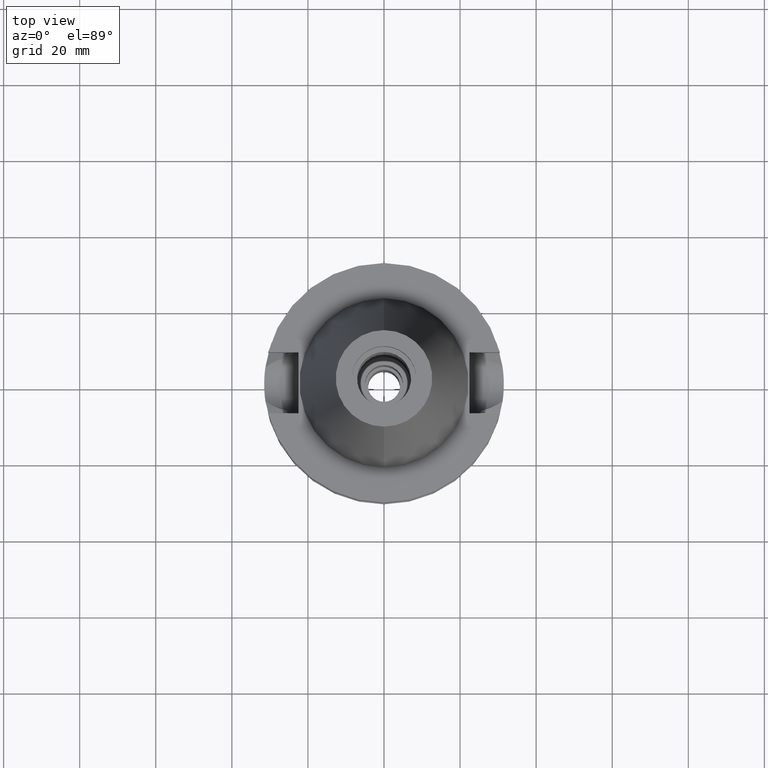
[diagram: clean part render]
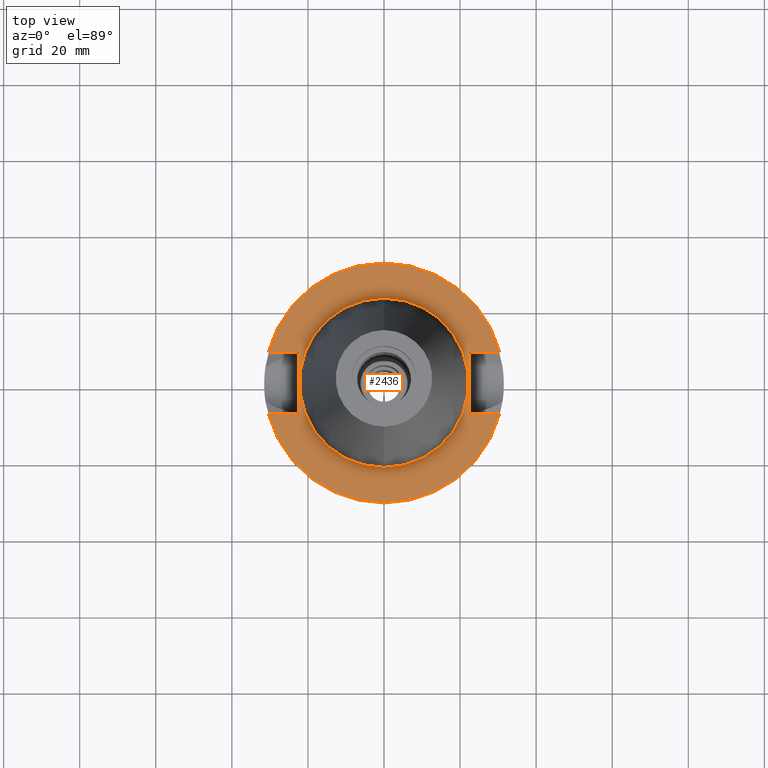
[diagram: same view with one face highlighted and labeled with its STEP entity id]
A machine part, top view. The second image highlights one B-rep face of the part: STEP entity #2436.
In plain terms, the highlighted planar face has unit normal (0, 0, -1).
Its self-contained STEP definition (entity closure, byte-faithful):
#31 = VECTOR ( 'NONE', #2857, 1000.000000000000000 ) ;
#179 = CARTESIAN_POINT ( 'NONE',  ( -30.45402272279000044, -8.050000000000000711, -2.000000000000000000 ) ) ;
#189 = EDGE_LOOP ( 'NONE', ( #730, #2983, #644, #1858, #2926, #400, #1988, #430 ) ) ;
#203 = VECTOR ( 'NONE', #3487, 1000.000000000000000 ) ;
#242 = DIRECTION ( 'NONE',  ( 0.0000000000000000000, -1.000000000000000000, 0.0000000000000000000 ) ) ;
#291 = DIRECTION ( 'NONE',  ( 0.0000000000000000000, 0.0000000000000000000, -1.000000000000000000 ) ) ;
#303 = FACE_OUTER_BOUND ( 'NONE', #189, .T. ) ;
#310 = CARTESIAN_POINT ( 'NONE',  ( 0.0000000000000000000, 2.126231772679999832E-14, -2.000000000000000000 ) ) ;
#316 = CIRCLE ( 'NONE', #1856, 31.50000000000000000 ) ;
#364 = VERTEX_POINT ( 'NONE', #1862 ) ;
#375 = VECTOR ( 'NONE', #2620, 1000.000000000000000 ) ;
#381 = LINE ( 'NONE', #1024, #203 ) ;
#398 = VERTEX_POINT ( 'NONE', #1000 ) ;
#400 = ORIENTED_EDGE ( 'NONE', *, *, #3413, .F. ) ;
#430 = ORIENTED_EDGE ( 'NONE', *, *, #725, .F. ) ;
#438 = VECTOR ( 'NONE', #1786, 1000.000000000000000 ) ;
#461 = EDGE_LOOP ( 'NONE', ( #1060, #3243 ) ) ;
#547 = DIRECTION ( 'NONE',  ( 0.0000000000000000000, 0.0000000000000000000, 1.000000000000000000 ) ) ;
#579 = DIRECTION ( 'NONE',  ( 0.0000000000000000000, 1.000000000000000000, 0.0000000000000000000 ) ) ;
#644 = ORIENTED_EDGE ( 'NONE', *, *, #1874, .F. ) ;
#678 = CARTESIAN_POINT ( 'NONE',  ( 22.50000000000000000, -8.050000000000000711, -2.000000000000000000 ) ) ;
#725 = EDGE_CURVE ( 'NONE', #3561, #398, #3066, .T. ) ;
#730 = ORIENTED_EDGE ( 'NONE', *, *, #2038, .T. ) ;
#799 = VECTOR ( 'NONE', #3373, 1000.000000000000000 ) ;
#807 = EDGE_CURVE ( 'NONE', #2149, #2198, #1813, .T. ) ;
#962 = CARTESIAN_POINT ( 'NONE',  ( -22.50000000000000000, -8.050000000000000711, -2.000000000000000000 ) ) ;
#963 = VERTEX_POINT ( 'NONE', #2690 ) ;
#1000 = CARTESIAN_POINT ( 'NONE',  ( -22.50000000000000000, 8.050000000000000711, -2.000000000000000000 ) ) ;
#1024 = CARTESIAN_POINT ( 'NONE',  ( -22.50000000000000000, 8.050000000000000711, -2.000000000000000000 ) ) ;
#1060 = ORIENTED_EDGE ( 'NONE', *, *, #3155, .F. ) ;
#1088 = CIRCLE ( 'NONE', #1792, 22.22500000000000142 ) ;
#1172 = DIRECTION ( 'NONE',  ( 0.0000000000000000000, 0.0000000000000000000, -1.000000000000000000 ) ) ;
#1331 = CARTESIAN_POINT ( 'NONE',  ( 0.0000000000000000000, 2.126231772679999832E-14, -2.000000000000000000 ) ) ;
#1502 = CARTESIAN_POINT ( 'NONE',  ( 0.0000000000000000000, 2.126231772679999832E-14, -2.000000000000000000 ) ) ;
#1551 = VERTEX_POINT ( 'NONE', #1554 ) ;
#1554 = CARTESIAN_POINT ( 'NONE',  ( 0.0000000000000000000, 22.22500000000000142, -2.000000000000000000 ) ) ;
#1724 = DIRECTION ( 'NONE',  ( 0.0000000000000000000, -1.000000000000000000, 0.0000000000000000000 ) ) ;
#1755 = CARTESIAN_POINT ( 'NONE',  ( 22.50000000000000000, 8.050000000000000711, -2.000000000000000000 ) ) ;
#1786 = DIRECTION ( 'NONE',  ( -1.000000000000000000, 3.550916904668000126E-14, 0.0000000000000000000 ) ) ;
#1792 = AXIS2_PLACEMENT_3D ( 'NONE', #2147, #3261, #1893 ) ;
#1810 = VERTEX_POINT ( 'NONE', #1755 ) ;
#1813 = CIRCLE ( 'NONE', #3045, 31.50000000000000000 ) ;
#1845 = CARTESIAN_POINT ( 'NONE',  ( -22.50000000000000000, -8.050000000000000711, -2.000000000000000000 ) ) ;
#1856 = AXIS2_PLACEMENT_3D ( 'NONE', #310, #291, #2607 ) ;
#1858 = ORIENTED_EDGE ( 'NONE', *, *, #3439, .F. ) ;
#1862 = CARTESIAN_POINT ( 'NONE',  ( 0.0000000000000000000, -22.22500000000000142, -2.000000000000000000 ) ) ;
#1874 = EDGE_CURVE ( 'NONE', #2009, #2149, #1961, .T. ) ;
#1893 = DIRECTION ( 'NONE',  ( 0.0000000000000000000, 1.000000000000000000, 0.0000000000000000000 ) ) ;
#1919 = AXIS2_PLACEMENT_3D ( 'NONE', #1331, #547, #242 ) ;
#1961 = LINE ( 'NONE', #2570, #31 ) ;
#1988 = ORIENTED_EDGE ( 'NONE', *, *, #2063, .F. ) ;
#2009 = VERTEX_POINT ( 'NONE', #678 ) ;
#2038 = EDGE_CURVE ( 'NONE', #3561, #2198, #2637, .T. ) ;
#2063 = EDGE_CURVE ( 'NONE', #398, #963, #381, .T. ) ;
#2100 = CARTESIAN_POINT ( 'NONE',  ( 30.45402272279000044, 8.050000000000000711, -2.000000000000000000 ) ) ;
#2147 = CARTESIAN_POINT ( 'NONE',  ( 0.0000000000000000000, 2.126231772679999832E-14, -2.000000000000000000 ) ) ;
#2149 = VERTEX_POINT ( 'NONE', #3529 ) ;
#2198 = VERTEX_POINT ( 'NONE', #179 ) ;
#2306 = FACE_BOUND ( 'NONE', #461, .T. ) ;
#2350 = EDGE_CURVE ( 'NONE', #1810, #2597, #3410, .T. ) ;
#2436 = ADVANCED_FACE ( 'NONE', ( #303, #2306 ), #3394, .F. ) ;
#2495 = AXIS2_PLACEMENT_3D ( 'NONE', #3118, #1172, #1724 ) ;
#2558 = CARTESIAN_POINT ( 'NONE',  ( 22.50000000000000000, 8.050000000000000711, -2.000000000000000000 ) ) ;
#2570 = CARTESIAN_POINT ( 'NONE',  ( 22.50000000000000000, -8.050000000000000711, -2.000000000000000000 ) ) ;
#2597 = VERTEX_POINT ( 'NONE', #2100 ) ;
#2607 = DIRECTION ( 'NONE',  ( 0.0000000000000000000, 1.000000000000000000, 0.0000000000000000000 ) ) ;
#2620 = DIRECTION ( 'NONE',  ( 0.0000000000000000000, -1.000000000000000000, 0.0000000000000000000 ) ) ;
#2630 = DIRECTION ( 'NONE',  ( 0.0000000000000000000, 0.0000000000000000000, -1.000000000000000000 ) ) ;
#2637 = LINE ( 'NONE', #1845, #438 ) ;
#2690 = CARTESIAN_POINT ( 'NONE',  ( -30.45402272279000044, 8.050000000000000711, -2.000000000000000000 ) ) ;
#2791 = CIRCLE ( 'NONE', #1919, 22.22500000000000142 ) ;
#2830 = CARTESIAN_POINT ( 'NONE',  ( -22.50000000000000000, -8.050000000000000711, -2.000000000000000000 ) ) ;
#2838 = LINE ( 'NONE', #3166, #375 ) ;
#2857 = DIRECTION ( 'NONE',  ( 1.000000000000000000, 3.573249715389999860E-14, 0.0000000000000000000 ) ) ;
#2926 = ORIENTED_EDGE ( 'NONE', *, *, #2350, .T. ) ;
#2983 = ORIENTED_EDGE ( 'NONE', *, *, #807, .F. ) ;
#3045 = AXIS2_PLACEMENT_3D ( 'NONE', #1502, #2630, #3151 ) ;
#3066 = LINE ( 'NONE', #2830, #3218 ) ;
#3118 = CARTESIAN_POINT ( 'NONE',  ( 0.0000000000000000000, 1.200153863163999924E-14, -2.000000000000000000 ) ) ;
#3151 = DIRECTION ( 'NONE',  ( 0.0000000000000000000, -1.000000000000000000, 0.0000000000000000000 ) ) ;
#3155 = EDGE_CURVE ( 'NONE', #1551, #364, #1088, .T. ) ;
#3166 = CARTESIAN_POINT ( 'NONE',  ( 22.50000000000000000, 8.050000000000000711, -2.000000000000000000 ) ) ;
#3174 = EDGE_CURVE ( 'NONE', #364, #1551, #2791, .T. ) ;
#3218 = VECTOR ( 'NONE', #579, 1000.000000000000000 ) ;
#3243 = ORIENTED_EDGE ( 'NONE', *, *, #3174, .F. ) ;
#3261 = DIRECTION ( 'NONE',  ( 0.0000000000000000000, 0.0000000000000000000, 1.000000000000000000 ) ) ;
#3373 = DIRECTION ( 'NONE',  ( 1.000000000000000000, -3.506251283225999947E-14, 0.0000000000000000000 ) ) ;
#3394 = PLANE ( 'NONE',  #2495 ) ;
#3410 = LINE ( 'NONE', #2558, #799 ) ;
#3413 = EDGE_CURVE ( 'NONE', #963, #2597, #316, .T. ) ;
#3439 = EDGE_CURVE ( 'NONE', #1810, #2009, #2838, .T. ) ;
#3487 = DIRECTION ( 'NONE',  ( -1.000000000000000000, -3.550916904668000126E-14, 0.0000000000000000000 ) ) ;
#3529 = CARTESIAN_POINT ( 'NONE',  ( 30.45402272279000044, -8.050000000000000711, -2.000000000000000000 ) ) ;
#3561 = VERTEX_POINT ( 'NONE', #962 ) ;